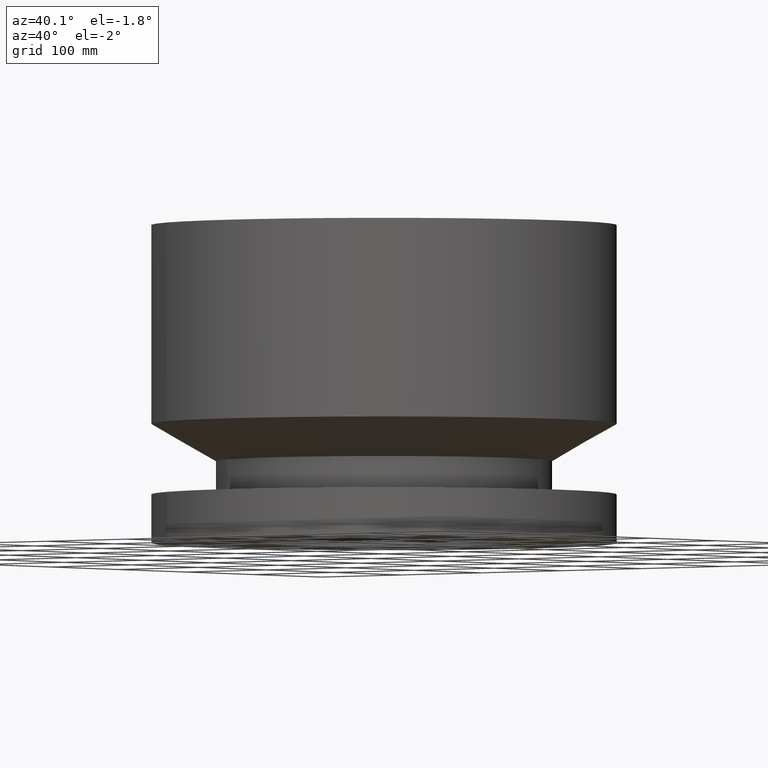
[diagram: clean part render]
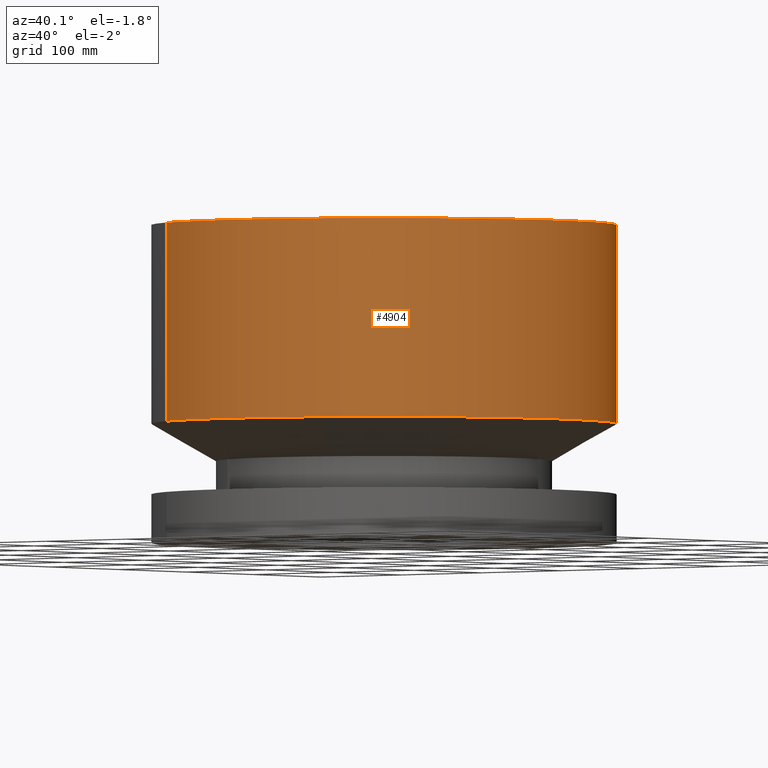
[diagram: same view with one face highlighted and labeled with its STEP entity id]
A machine part, auxiliary view. The second image highlights one B-rep face of the part: STEP entity #4904.
In plain terms, the highlighted cylindrical surface (partial cylindrical patch) has radius 222.25 mm, axis along (0, 0, -1).
Its self-contained STEP definition (entity closure, byte-faithful):
#429=AXIS2_PLACEMENT_3D('Cylinder Axis2P3D',#426,#427,#428) ;
#2007=AXIS2_PLACEMENT_3D('Circle Axis2P3D',#2005,#2006,$) ;
#4888=AXIS2_PLACEMENT_3D('Circle Axis2P3D',#4886,#4887,$) ;
#426=CARTESIAN_POINT('Axis2P3D Location',(0.,0.,5.93750000002)) ;
#2002=CARTESIAN_POINT('Vertex',(4.1949734628,7.67884741657,4.47623465684)) ;
#2005=CARTESIAN_POINT('Axis2P3D Location',(0.,0.,4.47623465684)) ;
#2009=CARTESIAN_POINT('Vertex',(-4.1949734628,-7.67884741657,4.47623465684)) ;
#4879=CARTESIAN_POINT('Line Origine',(4.1949734628,7.67884741657,8.20686732844)) ;
#4883=CARTESIAN_POINT('Vertex',(4.1949734628,7.67884741657,11.9375)) ;
#4886=CARTESIAN_POINT('Axis2P3D Location',(0.,0.,11.9375)) ;
#4890=CARTESIAN_POINT('Vertex',(-4.1949734628,-7.67884741657,11.9375)) ;
#4893=CARTESIAN_POINT('Line Origine',(-4.1949734628,-7.67884741657,8.20686732844)) ;
#427=DIRECTION('Axis2P3D Direction',(0.,0.,-0.0393700787402)) ;
#428=DIRECTION('Axis2P3D XDirection',(-0.0188750212049,-0.0345504945626,0.)) ;
#2006=DIRECTION('Axis2P3D Direction',(-0.,0.,0.0393700787402)) ;
#4880=DIRECTION('Vector Direction',(0.,0.,-0.0393700787402)) ;
#4887=DIRECTION('Axis2P3D Direction',(0.,0.,-0.0393700787402)) ;
#4894=DIRECTION('Vector Direction',(0.,0.,-0.0393700787402)) ;
#4881=VECTOR('Line Direction',#4880,0.0393700787402) ;
#4895=VECTOR('Line Direction',#4894,0.0393700787402) ;
#4899=ORIENTED_EDGE('',*,*,#2011,.F.) ;
#4900=ORIENTED_EDGE('',*,*,#4885,.T.) ;
#4901=ORIENTED_EDGE('',*,*,#4892,.T.) ;
#4902=ORIENTED_EDGE('',*,*,#4897,.F.) ;
#4904=ADVANCED_FACE('PartBody',(#4903),#430,.T.) ;
#2008=CIRCLE('generated circle',#2007,8.75000000003) ;
#4889=CIRCLE('generated circle',#4888,8.75000000003) ;
#430=CYLINDRICAL_SURFACE('generated cylinder',#429,8.75000000003) ;
#2011=EDGE_CURVE('',#2003,#2010,#2008,.F.) ;
#4885=EDGE_CURVE('',#2003,#4884,#4882,.F.) ;
#4892=EDGE_CURVE('',#4884,#4891,#4889,.T.) ;
#4897=EDGE_CURVE('',#2010,#4891,#4896,.F.) ;
#4898=EDGE_LOOP('',(#4899,#4900,#4901,#4902)) ;
#4903=FACE_OUTER_BOUND('',#4898,.T.) ;
#4882=LINE('Line',#4879,#4881) ;
#4896=LINE('Line',#4893,#4895) ;
#2003=VERTEX_POINT('',#2002) ;
#2010=VERTEX_POINT('',#2009) ;
#4884=VERTEX_POINT('',#4883) ;
#4891=VERTEX_POINT('',#4890) ;